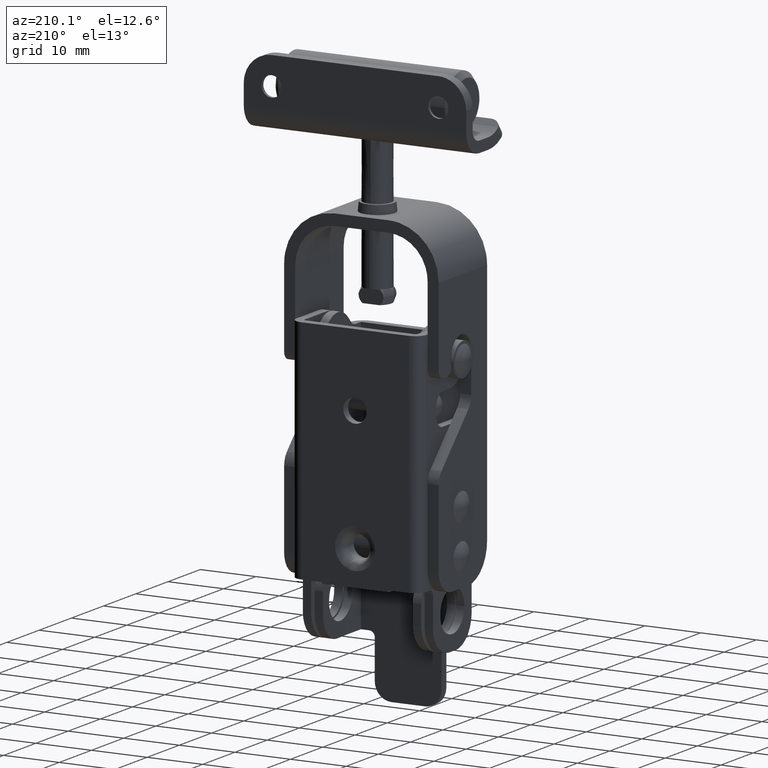
[diagram: clean part render]
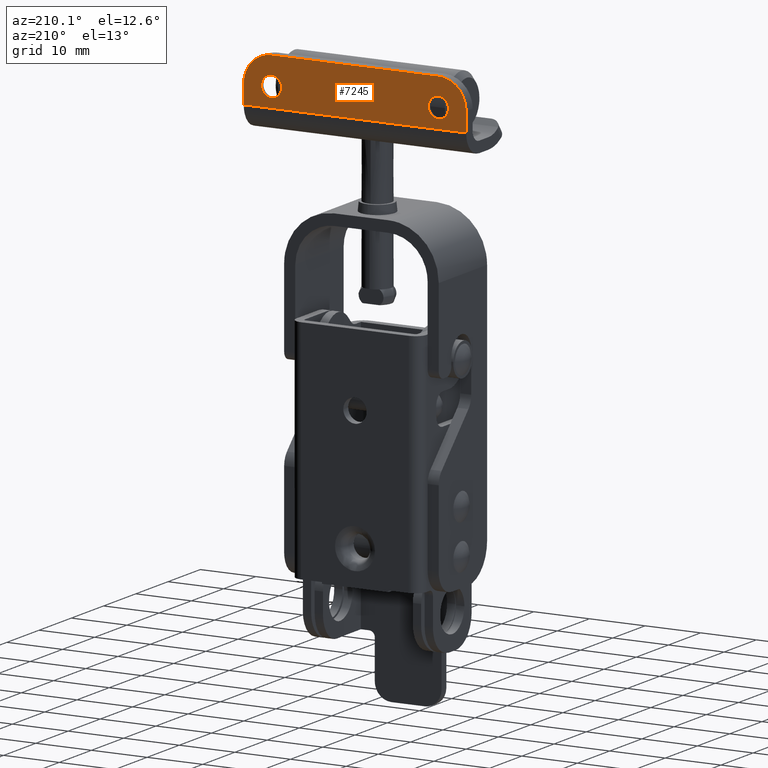
[diagram: same view with one face highlighted and labeled with its STEP entity id]
A machine part, auxiliary view. The second image highlights one B-rep face of the part: STEP entity #7245.
In plain terms, the highlighted face is a freeform B-spline surface patch.
Its self-contained STEP definition (entity closure, byte-faithful):
#5554=CARTESIAN_POINT('',(-16.796642637140991,8.045210E-013,50.109887376037413));
#5555=VERTEX_POINT('',#5554);
#5561=CARTESIAN_POINT('',(-15.0,8.045016E-013,51.800000004546142));
#5562=VERTEX_POINT('',#5561);
#5563=CARTESIAN_POINT('',(-15.0,8.045016E-013,51.800000004546142));
#5564=CARTESIAN_POINT('',(-16.693270920120153,8.045016E-013,51.800000004546142));
#5565=CARTESIAN_POINT('',(-16.796642637140994,8.045016E-013,50.109887376037413));
#5573=(BOUNDED_CURVE()B_SPLINE_CURVE(2,(#5563,#5564,#5565),.UNSPECIFIED.,.F.,.U.)B_SPLINE_CURVE_WITH_KNOTS((3,3),(0.500000000000000,0.739332962210252),.UNSPECIFIED.)CURVE()GEOMETRIC_REPRESENTATION_ITEM()RATIONAL_B_SPLINE_CURVE((1.0,0.719603993320324,0.976072041605227))REPRESENTATION_ITEM(''));
#5574=EDGE_CURVE('',#5562,#5555,#5573,.T.);
#5576=CARTESIAN_POINT('',(-13.203357362859011,8.045210E-013,49.890112633051189));
#5577=VERTEX_POINT('',#5576);
#5578=CARTESIAN_POINT('',(-13.203357362859000,8.045016E-013,49.890112633051174));
#5579=CARTESIAN_POINT('',(-13.199999999998166,8.045016E-013,49.945005030441195));
#5580=CARTESIAN_POINT('',(-13.199999999998161,8.045016E-013,50.000000004544297));
#5581=CARTESIAN_POINT('',(-13.199999999998164,8.045016E-013,51.800000004546142));
#5582=CARTESIAN_POINT('',(-15.0,8.045016E-013,51.800000004546142));
#5590=(BOUNDED_CURVE()B_SPLINE_CURVE(2,(#5578,#5579,#5580,#5581,#5582),.UNSPECIFIED.,.F.,.U.)B_SPLINE_CURVE_WITH_KNOTS((3,2,3),(0.239332962210250,0.250000000000000,0.500000000000000),.UNSPECIFIED.)CURVE()GEOMETRIC_REPRESENTATION_ITEM()RATIONAL_B_SPLINE_CURVE((0.976072041605223,0.987502787866221,1.0,0.707106781186548,1.0))REPRESENTATION_ITEM(''));
#5591=EDGE_CURVE('',#5577,#5562,#5590,.T.);
#5621=CARTESIAN_POINT('',(-15.0,8.045016E-013,48.200000004542467));
#5622=VERTEX_POINT('',#5621);
#5623=CARTESIAN_POINT('',(-15.0,8.045016E-013,48.200000004542467));
#5624=CARTESIAN_POINT('',(-13.306729079879863,8.045016E-013,48.200000004542474));
#5625=CARTESIAN_POINT('',(-13.203357362859007,8.045016E-013,49.890112633051181));
#5633=(BOUNDED_CURVE()B_SPLINE_CURVE(2,(#5623,#5624,#5625),.UNSPECIFIED.,.F.,.U.)B_SPLINE_CURVE_WITH_KNOTS((3,3),(0.0,0.239332962210251),.UNSPECIFIED.)CURVE()GEOMETRIC_REPRESENTATION_ITEM()RATIONAL_B_SPLINE_CURVE((1.0,0.719603993320325,0.976072041605225))REPRESENTATION_ITEM(''));
#5634=EDGE_CURVE('',#5622,#5577,#5633,.T.);
#5636=CARTESIAN_POINT('',(-16.796642637140994,8.045016E-013,50.109887376037420));
#5637=CARTESIAN_POINT('',(-16.800000000001834,8.045016E-013,50.054994978647414));
#5638=CARTESIAN_POINT('',(-16.800000000001830,8.045016E-013,50.000000004544297));
#5639=CARTESIAN_POINT('',(-16.800000000001841,8.045016E-013,48.200000004542467));
#5640=CARTESIAN_POINT('',(-15.0,8.045016E-013,48.200000004542467));
#5648=(BOUNDED_CURVE()B_SPLINE_CURVE(2,(#5636,#5637,#5638,#5639,#5640),.UNSPECIFIED.,.F.,.U.)B_SPLINE_CURVE_WITH_KNOTS((3,2,3),(0.739332962210251,0.750000000000000,1.0),.UNSPECIFIED.)CURVE()GEOMETRIC_REPRESENTATION_ITEM()RATIONAL_B_SPLINE_CURVE((0.976072041605226,0.987502787866223,1.0,0.707106781186548,1.0))REPRESENTATION_ITEM(''));
#5649=EDGE_CURVE('',#5555,#5622,#5648,.T.);
#5858=CARTESIAN_POINT('',(13.203357362859011,8.045210E-013,50.109887376037413));
#5859=VERTEX_POINT('',#5858);
#5865=CARTESIAN_POINT('',(15.0,8.045016E-013,51.800000004546142));
#5866=VERTEX_POINT('',#5865);
#5867=CARTESIAN_POINT('',(15.0,8.045016E-013,51.800000004546142));
#5868=CARTESIAN_POINT('',(13.306729079879849,8.045016E-013,51.800000004546142));
#5869=CARTESIAN_POINT('',(13.203357362859009,8.045016E-013,50.109887376037413));
#5877=(BOUNDED_CURVE()B_SPLINE_CURVE(2,(#5867,#5868,#5869),.UNSPECIFIED.,.F.,.U.)B_SPLINE_CURVE_WITH_KNOTS((3,3),(0.500000000000000,0.739332962210252),.UNSPECIFIED.)CURVE()GEOMETRIC_REPRESENTATION_ITEM()RATIONAL_B_SPLINE_CURVE((1.0,0.719603993320324,0.976072041605227))REPRESENTATION_ITEM(''));
#5878=EDGE_CURVE('',#5866,#5859,#5877,.T.);
#5880=CARTESIAN_POINT('',(16.796642637140991,8.045210E-013,49.890112633051203));
#5881=VERTEX_POINT('',#5880);
#5882=CARTESIAN_POINT('',(16.796642637140994,8.045016E-013,49.890112633051189));
#5883=CARTESIAN_POINT('',(16.800000000001837,8.045016E-013,49.945005030441202));
#5884=CARTESIAN_POINT('',(16.800000000001830,8.045016E-013,50.000000004544297));
#5885=CARTESIAN_POINT('',(16.800000000001841,8.045016E-013,51.800000004546142));
#5886=CARTESIAN_POINT('',(15.0,8.045016E-013,51.800000004546142));
#5894=(BOUNDED_CURVE()B_SPLINE_CURVE(2,(#5882,#5883,#5884,#5885,#5886),.UNSPECIFIED.,.F.,.U.)B_SPLINE_CURVE_WITH_KNOTS((3,2,3),(0.239332962210251,0.250000000000000,0.500000000000000),.UNSPECIFIED.)CURVE()GEOMETRIC_REPRESENTATION_ITEM()RATIONAL_B_SPLINE_CURVE((0.976072041605226,0.987502787866223,1.0,0.707106781186548,1.0))REPRESENTATION_ITEM(''));
#5895=EDGE_CURVE('',#5881,#5866,#5894,.T.);
#5925=CARTESIAN_POINT('',(15.0,8.045016E-013,48.200000004542467));
#5926=VERTEX_POINT('',#5925);
#5927=CARTESIAN_POINT('',(15.0,8.045016E-013,48.200000004542467));
#5928=CARTESIAN_POINT('',(16.693270920120142,8.045016E-013,48.200000004542460));
#5929=CARTESIAN_POINT('',(16.796642637140991,8.045016E-013,49.890112633051203));
#5937=(BOUNDED_CURVE()B_SPLINE_CURVE(2,(#5927,#5928,#5929),.UNSPECIFIED.,.F.,.U.)B_SPLINE_CURVE_WITH_KNOTS((3,3),(0.0,0.239332962210251),.UNSPECIFIED.)CURVE()GEOMETRIC_REPRESENTATION_ITEM()RATIONAL_B_SPLINE_CURVE((1.0,0.719603993320324,0.976072041605226))REPRESENTATION_ITEM(''));
#5938=EDGE_CURVE('',#5926,#5881,#5937,.T.);
#5940=CARTESIAN_POINT('',(13.203357362859011,8.045016E-013,50.109887376037420));
#5941=CARTESIAN_POINT('',(13.199999999998161,8.045016E-013,50.054994978647414));
#5942=CARTESIAN_POINT('',(13.199999999998161,8.045016E-013,50.000000004544297));
#5943=CARTESIAN_POINT('',(13.199999999998164,8.045016E-013,48.200000004542467));
#5944=CARTESIAN_POINT('',(15.0,8.045016E-013,48.200000004542467));
#5952=(BOUNDED_CURVE()B_SPLINE_CURVE(2,(#5940,#5941,#5942,#5943,#5944),.UNSPECIFIED.,.F.,.U.)B_SPLINE_CURVE_WITH_KNOTS((3,2,3),(0.739332962210251,0.750000000000000,1.0),.UNSPECIFIED.)CURVE()GEOMETRIC_REPRESENTATION_ITEM()RATIONAL_B_SPLINE_CURVE((0.976072041605226,0.987502787866223,1.0,0.707106781186548,1.0))REPRESENTATION_ITEM(''));
#5953=EDGE_CURVE('',#5859,#5926,#5952,.T.);
#6847=CARTESIAN_POINT('',(-20.0,1.003119E-014,50.000000004708703));
#6848=VERTEX_POINT('',#6847);
#6849=CARTESIAN_POINT('',(-15.0,2.216893E-012,55.000000004708703));
#6850=VERTEX_POINT('',#6849);
#6851=CARTESIAN_POINT('',(-20.0,1.003119E-014,50.000000004708703));
#6852=CARTESIAN_POINT('',(-19.999999999999996,2.216893E-012,55.000000004708689));
#6853=CARTESIAN_POINT('',(-15.0,2.216893E-012,55.000000004708703));
#6861=(BOUNDED_CURVE()B_SPLINE_CURVE(2,(#6851,#6852,#6853),.UNSPECIFIED.,.F.,.U.)CURVE()GEOMETRIC_REPRESENTATION_ITEM()QUASI_UNIFORM_CURVE()RATIONAL_B_SPLINE_CURVE((1.0,0.707106781186548,1.0))REPRESENTATION_ITEM(''));
#6862=EDGE_CURVE('',#6848,#6850,#6861,.T.);
#6908=CARTESIAN_POINT('',(15.0,2.216893E-012,55.000000004708703));
#6909=VERTEX_POINT('',#6908);
#6910=CARTESIAN_POINT('',(20.0,1.003119E-014,50.000000004708703));
#6911=VERTEX_POINT('',#6910);
#6912=CARTESIAN_POINT('',(15.0,2.216893E-012,55.000000004708703));
#6913=CARTESIAN_POINT('',(19.999999999999996,2.216893E-012,55.000000004708689));
#6914=CARTESIAN_POINT('',(20.0,1.003119E-014,50.000000004708703));
#6922=(BOUNDED_CURVE()B_SPLINE_CURVE(2,(#6912,#6913,#6914),.UNSPECIFIED.,.F.,.U.)CURVE()GEOMETRIC_REPRESENTATION_ITEM()QUASI_UNIFORM_CURVE()RATIONAL_B_SPLINE_CURVE((1.0,0.707106781186548,1.0))REPRESENTATION_ITEM(''));
#6923=EDGE_CURVE('',#6909,#6911,#6922,.T.);
#6998=CARTESIAN_POINT('',(20.0,-1.534772E-012,46.500000004879503));
#6999=VERTEX_POINT('',#6998);
#7013=CARTESIAN_POINT('',(20.0,-1.534772E-012,46.500000004879503));
#7014=CARTESIAN_POINT('',(20.0,1.003119E-014,50.000000004708703));
#7015=QUASI_UNIFORM_CURVE('',1,(#7013,#7014),.UNSPECIFIED.,.F.,.U.);
#7016=EDGE_CURVE('',#6999,#6911,#7015,.T.);
#7111=CARTESIAN_POINT('',(-20.0,-1.534772E-012,46.500000004879503));
#7112=VERTEX_POINT('',#7111);
#7113=CARTESIAN_POINT('',(-20.0,-1.534772E-012,46.500000004879503));
#7114=CARTESIAN_POINT('',(-20.0,1.003119E-014,50.000000004708703));
#7115=QUASI_UNIFORM_CURVE('',1,(#7113,#7114),.UNSPECIFIED.,.F.,.U.);
#7116=EDGE_CURVE('',#7112,#6848,#7115,.T.);
#7207=CARTESIAN_POINT('',(-15.0,2.216893E-012,55.000000004708703));
#7208=CARTESIAN_POINT('',(15.0,2.216893E-012,55.000000004708703));
#7209=QUASI_UNIFORM_CURVE('',1,(#7207,#7208),.UNSPECIFIED.,.F.,.U.);
#7210=EDGE_CURVE('',#6850,#6909,#7209,.T.);
#7216=CARTESIAN_POINT('',(-21.997999922472239,-1.722168E-012,46.075425021362683));
#7217=CARTESIAN_POINT('',(-21.997999922472239,2.404289E-012,55.424575216213292));
#7218=CARTESIAN_POINT('',(21.998000995355849,-1.722168E-012,46.075425021362683));
#7219=CARTESIAN_POINT('',(21.998000995355849,2.404289E-012,55.424575216213292));
#7220=B_SPLINE_SURFACE_WITH_KNOTS('',1,1,((#7216,#7218),(#7217,#7219)),.UNSPECIFIED.,.F.,.F.,.U.,(2,2),(2,2),(0.0,9.349150194850608),(0.0,43.996000917828077),.UNSPECIFIED.);
#7221=ORIENTED_EDGE('',*,*,#7210,.T.);
#7222=ORIENTED_EDGE('',*,*,#6923,.T.);
#7223=ORIENTED_EDGE('',*,*,#7016,.F.);
#7224=CARTESIAN_POINT('',(-20.0,-1.534772E-012,46.500000004879503));
#7225=CARTESIAN_POINT('',(20.0,-1.534772E-012,46.500000004879503));
#7226=QUASI_UNIFORM_CURVE('',1,(#7224,#7225),.UNSPECIFIED.,.F.,.U.);
#7227=EDGE_CURVE('',#7112,#6999,#7226,.T.);
#7228=ORIENTED_EDGE('',*,*,#7227,.F.);
#7229=ORIENTED_EDGE('',*,*,#7116,.T.);
#7230=ORIENTED_EDGE('',*,*,#6862,.T.);
#7231=EDGE_LOOP('',(#7221,#7222,#7223,#7228,#7229,#7230));
#7232=FACE_OUTER_BOUND('',#7231,.T.);
#7233=ORIENTED_EDGE('',*,*,#5878,.T.);
#7234=ORIENTED_EDGE('',*,*,#5953,.T.);
#7235=ORIENTED_EDGE('',*,*,#5938,.T.);
#7236=ORIENTED_EDGE('',*,*,#5895,.T.);
#7237=EDGE_LOOP('',(#7233,#7234,#7235,#7236));
#7238=FACE_BOUND('',#7237,.T.);
#7239=ORIENTED_EDGE('',*,*,#5574,.T.);
#7240=ORIENTED_EDGE('',*,*,#5649,.T.);
#7241=ORIENTED_EDGE('',*,*,#5634,.T.);
#7242=ORIENTED_EDGE('',*,*,#5591,.T.);
#7243=EDGE_LOOP('',(#7239,#7240,#7241,#7242));
#7244=FACE_BOUND('',#7243,.T.);
#7245=ADVANCED_FACE('',(#7232,#7238,#7244),#7220,.T.);